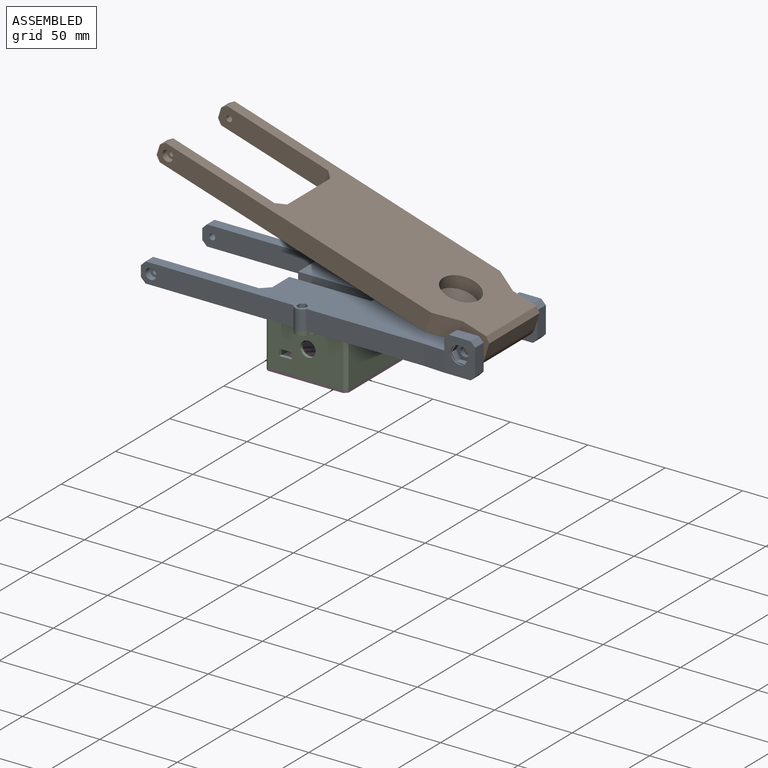
[diagram: assembled view]
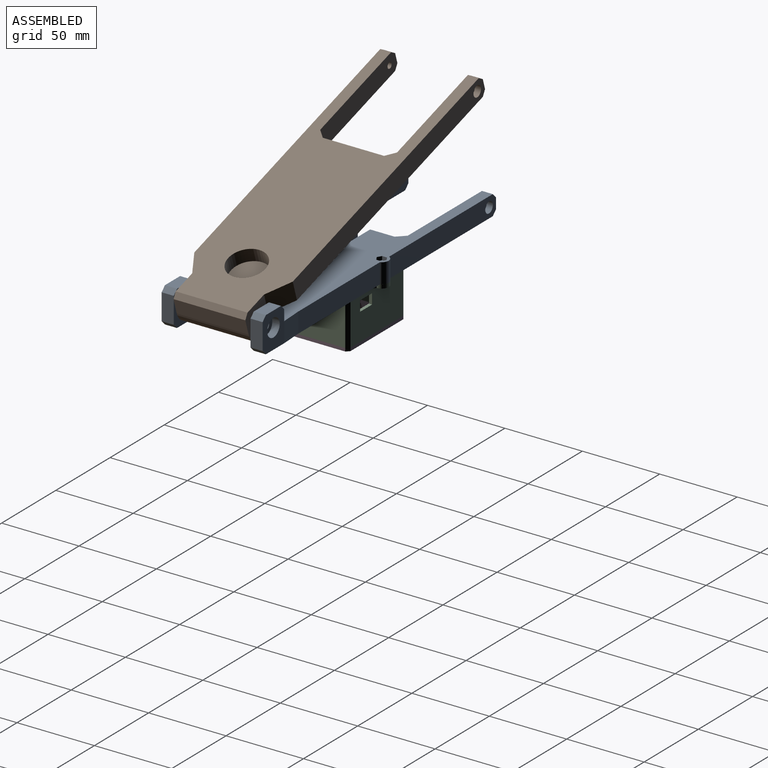
[diagram: assembled view, second angle]
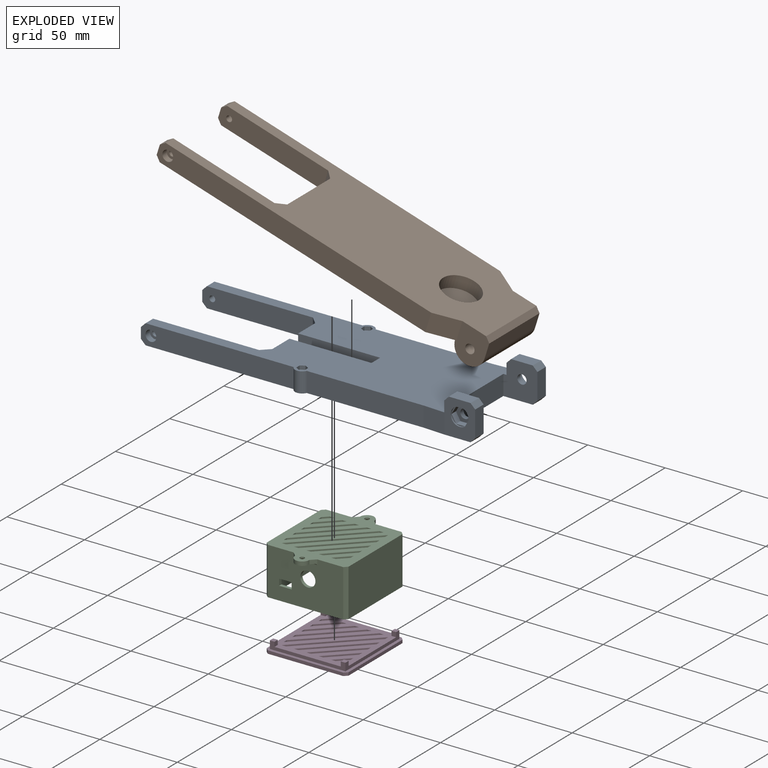
[diagram: exploded view]
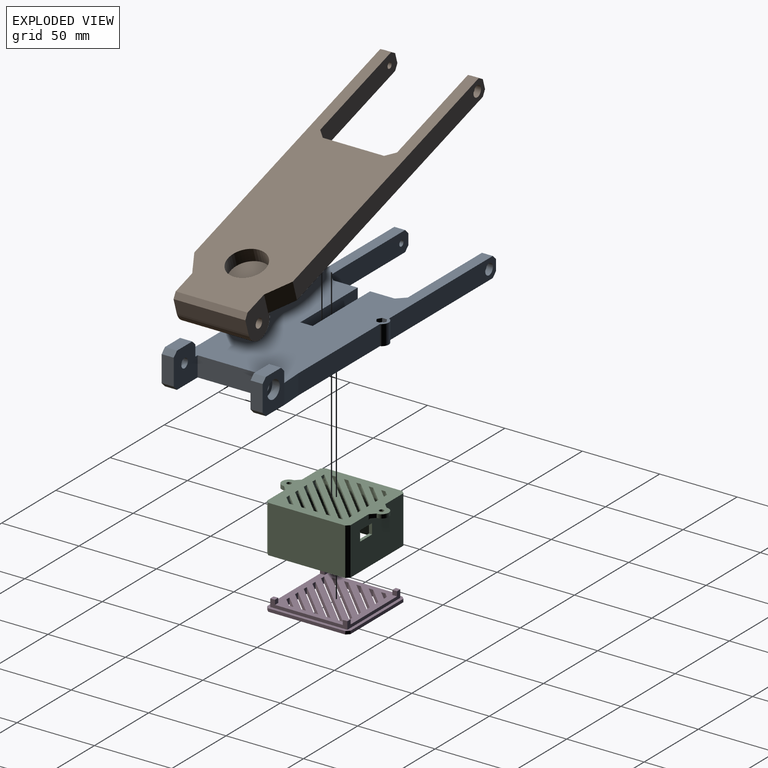
[diagram: exploded view, second angle]
ASSEMBLY  parts=4 mates=3
PART A: 84 faces, bbox 216.5x69x22.9 mm
  f0: plane 193.45x69mm, normal (0,0,1), area 8153.3mm2, adj f3,f4,f9,f16,f19,f20,f21,f22
  f1: cylinder r=1.5mm len=10.5mm, axis (0,0,-1), area 99mm2, adj f8,f83
  f2: cylinder r=1.5mm len=10.5mm, axis (0,0,-1), area 99mm2, adj f8,f76
  f3: plane 98.66x12.9mm, normal (0,1,0), area 1225.2mm2, adj f0,f8,f37,f56,f58,f59,f69
  f4: plane 75.55x12.9mm, normal (0,-1,0), area 974.7mm2, adj f0,f8,f41,f68
  f5: cylinder r=1.9mm len=3.8mm, axis (0,-1,0), area 35.8mm2, adj f19,f44
  f6: cylinder r=1.9mm len=3.8mm, axis (0,1,0), area 35.8mm2, adj f22,f43
  f7: plane 22.9x20mm, normal (0,1,0), area 339.8mm2, adj f8,f38,f42,f52,f53,f54,f61,f63
  f8: plane 210.45x69mm, normal (0,0,-1), area 8428.4mm2, adj f1,f2,f3,f4,f7,f9,f16,f19
  f9: plane 98.66x12.9mm, normal (0,-1,0), area 1225.2mm2, adj f0,f8,f36,f55,f57,f60,f68
  f10: plane 5x2.89mm, normal (0,-1,0), area 3mm2, adj f28,f39
  f11: plane 5x2.89mm, normal (0,-1,0), area 3mm2, adj f33,f39
  f12: plane 5.77x0.77mm, normal (0,-1,0), area 3mm2, adj f32,f39
  f13: plane 5x2.89mm, normal (0,-1,0), area 3mm2, adj f31,f39
  f14: plane 5x2.89mm, normal (0,-1,0), area 3mm2, adj f30,f39
  f15: plane 5.77x0.77mm, normal (0,-1,0), area 3mm2, adj f29,f39
  f16: plane 75.55x12.9mm, normal (0,1,0), area 974.7mm2, adj f0,f8,f42,f69
  f17: cylinder r=3mm len=6mm, axis (0,-1,0), area 56.5mm2, adj f23,f35
  f18: cylinder r=3mm len=6mm, axis (0,1,0), area 56.5mm2, adj f20,f34
  f19: plane 71.45x12.9mm, normal (0,1,0), area 901.4mm2, adj f0,f5,f8,f24,f55,f57,f60
  f20: plane 22.9x22mm, normal (0,1,0), area 442mm2, adj f0,f8,f18,f49,f50,f51,f62,f65
  f21: plane 39.6x12.9mm, normal (-1,0,0), area 434.1mm2, adj f0,f8,f24,f25,f46,f47,f48
  f22: plane 71.45x12.9mm, normal (0,-1,0), area 901.4mm2, adj f0,f6,f8,f25,f56,f58,f59
  f23: plane 22.9x22mm, normal (0,-1,0), area 442mm2, adj f0,f8,f17,f52,f53,f54,f61,f63
  f24: plane 12.9x5mm, normal (-0.71,0.71,0), area 91.2mm2, adj f0,f8,f19,f21
  f25: plane 12.9x5mm, normal (-0.71,-0.71,0), area 91.2mm2, adj f0,f8,f21,f22
  f26: cylinder r=12mm len=24mm, axis (0,0,-1), area 640.9mm2, adj f8,f27
  f27: plane 24x24mm, normal (0,0,-1), area 452.4mm2, adj f26
  f28: plane 5x4mm, normal (-0.87,0,-0.5), area 23.1mm2, adj f10,f29,f33,f34
  f29: plane 5.77x4mm, normal (0,0,-1), area 23.1mm2, adj f15,f28,f30,f34
  f30: plane 5x4mm, normal (0.87,0,-0.5), area 23.1mm2, adj f14,f29,f31,f34
  f31: plane 5x4mm, normal (0.87,0,0.5), area 23.1mm2, adj f13,f30,f32,f34
  f32: plane 5.77x4mm, normal (0,0,1), area 23.1mm2, adj f12,f31,f33,f34
  f33: plane 5x4mm, normal (-0.87,0,0.5), area 23.1mm2, adj f11,f28,f32,f34
  f34: plane 11.55x10mm, normal (0,-1,0), area 58.3mm2, adj f18,f28,f29,f30,f31,f32,f33
  f35: plane 11.55x11.55mm, normal (0,1,0), area 76.4mm2, adj f17,f38
  f36: cylinder r=3.5mm len=7mm, axis (0,1,0), area 88mm2, adj f9,f44
  f37: cylinder r=3.5mm len=7mm, axis (0,-1,0), area 88mm2, adj f3,f43
  f38: cylinder r=5.77mm len=11.55mm, axis (0,-1,0), area 174.1mm2, adj f7,f35
  f39: cylinder r=5.77mm len=11.55mm, axis (0,1,0), area 29mm2, adj f10,f11,f12,f13,f14,f15,f40
  f40: plane 22.9x20mm, normal (0,-1,0), area 339.8mm2, adj f8,f39,f41,f49,f50,f51,f62,f65
  f41: plane 13.86x12.9mm, normal (-0.06,-1,0), area 179mm2, adj f0,f4,f8,f40
  f42: plane 13.86x12.9mm, normal (-0.06,1,0), area 179mm2, adj f0,f7,f8,f16
  f43: plane 7x7mm, normal (0,1,0), area 27.1mm2, adj f6,f37
  f44: plane 7x7mm, normal (0,-1,0), area 27.1mm2, adj f5,f36
  f45: plane 10.45x8mm, normal (-1,0,0), area 76.7mm2, adj f0,f46,f47,f48
  f46: plane 53x6.45mm, normal (0,1,0), area 341.8mm2, adj f0,f21,f45,f47
  f47: cylinder r=4mm len=53mm, axis (-1,0,0), area 666mm2, adj f21,f45,f46,f48
  f48: plane 53x6.45mm, normal (0,-1,0), area 341.8mm2, adj f0,f21,f45,f47
  f49: plane 16.9x7.8mm, normal (1,0,0), area 131.8mm2, adj f20,f40,f62,f66
  f50: plane 14x7.8mm, normal (0,0,1), area 109.2mm2, adj f20,f40,f65,f66
  f51: plane 7.8x7mm, normal (-1,0,0), area 54.6mm2, adj f0,f20,f40,f65
  f52: plane 16.9x7.8mm, normal (1,0,0), area 131.8mm2, adj f7,f23,f61,f64
  f53: plane 14x7.8mm, normal (0,0,1), area 109.2mm2, adj f7,f23,f63,f64
  f54: plane 7.8x7mm, normal (-1,0,0), area 54.6mm2, adj f0,f7,f23,f63
  f55: plane 7x6.9mm, normal (-1,0,0), area 48.3mm2, adj f9,f19,f57,f60
  f56: plane 7x6.9mm, normal (-1,0,0), area 48.3mm2, adj f3,f22,f58,f59
  f57: plane 7x3mm, normal (-0.71,0,0.71), area 29.7mm2, adj f0,f9,f19,f55
  f58: plane 7x3mm, normal (-0.71,0,0.71), area 29.7mm2, adj f0,f3,f22,f56
  f59: plane 7x3mm, normal (-0.71,0,-0.71), area 29.7mm2, adj f3,f8,f22,f56
  f60: plane 7x3mm, normal (-0.71,0,-0.71), area 29.7mm2, adj f8,f9,f19,f55
  f61: plane 7.8x3mm, normal (0.71,0,-0.71), area 33.1mm2, adj f7,f8,f23,f52
  f62: plane 7.8x3mm, normal (0.71,0,-0.71), area 33.1mm2, adj f8,f20,f40,f49
  f63: plane 7.8x3mm, normal (-0.71,0,0.71), area 33.1mm2, adj f7,f23,f53,f54
  f64: plane 7.8x3mm, normal (0.71,0,0.71), area 33.1mm2, adj f7,f23,f52,f53
  f65: plane 7.8x3mm, normal (-0.71,0,0.71), area 33.1mm2, adj f20,f40,f50,f51
  f66: plane 7.8x3mm, normal (0.71,0,0.71), area 33.1mm2, adj f20,f40,f49,f50
  f67: plane 49.6x12.9mm, normal (1,0,0), area 639.8mm2, adj f0,f8,f20,f23
  f68: cylinder r=4.6mm len=12.9mm, axis (0,0,-1), area 135.9mm2, adj f0,f4,f8,f9
  f69: cylinder r=4.6mm len=12.9mm, axis (0,0,-1), area 135.9mm2, adj f0,f3,f8,f16
  f70: plane 2.75x2.4mm, normal (0.5,-0.87,0), area 7.6mm2, adj f0,f71,f75,f76
  f71: plane 3.18x2.4mm, normal (1,0,0), area 7.6mm2, adj f0,f70,f72,f76
  f72: plane 2.75x2.4mm, normal (0.5,0.87,0), area 7.6mm2, adj f0,f71,f73,f76
  f73: plane 2.75x2.4mm, normal (-0.5,0.87,0), area 7.6mm2, adj f0,f72,f74,f76
  f74: plane 3.18x2.4mm, normal (-1,0,0), area 7.6mm2, adj f0,f73,f75,f76
  f75: plane 2.75x2.4mm, normal (-0.5,-0.87,0), area 7.6mm2, adj f0,f70,f74,f76
  f76: plane 6.35x5.5mm, normal (0,0,1), area 19.1mm2, adj f2,f70,f71,f72,f73,f74,f75
  f77: plane 2.75x2.4mm, normal (-0.5,-0.87,0), area 7.6mm2, adj f0,f78,f82,f83
  f78: plane 2.75x2.4mm, normal (0.5,-0.87,0), area 7.6mm2, adj f0,f77,f79,f83
  f79: plane 3.18x2.4mm, normal (1,0,0), area 7.6mm2, adj f0,f78,f80,f83
  f80: plane 2.75x2.4mm, normal (0.5,0.87,0), area 7.6mm2, adj f0,f79,f81,f83
  f81: plane 2.75x2.4mm, normal (-0.5,0.87,0), area 7.6mm2, adj f0,f80,f82,f83
  f82: plane 3.18x2.4mm, normal (-1,0,0), area 7.6mm2, adj f0,f77,f81,f83
  f83: plane 6.35x5.5mm, normal (0,0,1), area 19.1mm2, adj f1,f77,f78,f79,f80,f81,f82
PART B: 33 faces, bbox 216.5x63.6x22.9 mm
  f0: plane 46.4x9.9mm, normal (1,0,0), area 459.4mm2, adj f1,f28,f29,f30
  f1: cylinder r=10mm len=46.4mm, axis (0,-1,0), area 1457.7mm2, adj f0,f7,f29,f30
  f2: cylinder r=3mm len=46.4mm, axis (0,-1,0), area 874.6mm2, adj f29,f30
  f3: cylinder r=1.9mm len=3.8mm, axis (0,-1,0), area 35.8mm2, adj f8,f21
  f4: cylinder r=1.9mm len=3.8mm, axis (0,1,0), area 35.8mm2, adj f10,f20
  f5: plane 182.59x12.9mm, normal (0,-1,0), area 2308mm2, adj f6,f7,f13,f19,f22,f24,f27
  f6: plane 210.45x63.6mm, normal (0,0,1), area 8911.5mm2, adj f5,f8,f9,f10,f11,f12,f13,f14
  f7: plane 194.45x63.6mm, normal (0,0,-1), area 8575.1mm2, adj f1,f5,f8,f9,f10,f11,f12,f13
  f8: plane 71.45x12.9mm, normal (0,1,0), area 901.4mm2, adj f3,f6,f7,f14,f22,f24,f27
  f9: plane 39.6x12.9mm, normal (-1,0,0), area 510.8mm2, adj f6,f7,f14,f15
  f10: plane 71.45x12.9mm, normal (0,-1,0), area 901.4mm2, adj f4,f6,f7,f15,f23,f25,f26
  f11: plane 182.59x12.9mm, normal (0,1,0), area 2308mm2, adj f6,f7,f12,f18,f23,f25,f26
  f12: plane 14.8x12.9mm, normal (0.5,0.87,0), area 220.5mm2, adj f6,f7,f11,f31
  f13: plane 14.8x12.9mm, normal (0.5,-0.87,0), area 220.5mm2, adj f5,f6,f7,f32
  f14: plane 12.9x5mm, normal (-0.71,0.71,0), area 91.2mm2, adj f6,f7,f8,f9
  f15: plane 12.9x5mm, normal (-0.71,-0.71,0), area 91.2mm2, adj f6,f7,f9,f10
  f16: cylinder r=12mm len=24mm, axis (0,0,1), area 640.9mm2, adj f6,f17
  f17: plane 24x24mm, normal (0,0,1), area 452.4mm2, adj f16
  f18: cylinder r=3.5mm len=7mm, axis (0,-1,0), area 88mm2, adj f11,f20
  f19: cylinder r=3.5mm len=7mm, axis (0,1,0), area 88mm2, adj f5,f21
  f20: plane 7x7mm, normal (0,1,0), area 27.1mm2, adj f4,f18
  f21: plane 7x7mm, normal (0,-1,0), area 27.1mm2, adj f3,f19
  f22: plane 7x6.9mm, normal (-1,0,0), area 48.3mm2, adj f5,f8,f24,f27
  f23: plane 7x6.9mm, normal (-1,0,0), area 48.3mm2, adj f10,f11,f25,f26
  f24: plane 7x3mm, normal (-0.71,0,-0.71), area 29.7mm2, adj f5,f7,f8,f22
  f25: plane 7x3mm, normal (-0.71,0,-0.71), area 29.7mm2, adj f7,f10,f11,f23
  f26: plane 7x3mm, normal (-0.71,0,0.71), area 29.7mm2, adj f6,f10,f11,f23
  f27: plane 7x3mm, normal (-0.71,0,0.71), area 29.7mm2, adj f5,f6,f8,f22
  f28: plane 46.4x3mm, normal (0.71,0,0.71), area 196.9mm2, adj f0,f6,f29,f30
  f29: plane 22.9x20mm, normal (0,-1,0), area 369.4mm2, adj f0,f1,f2,f6,f7,f28,f32
  f30: plane 22.9x20mm, normal (0,1,0), area 369.4mm2, adj f0,f1,f2,f6,f7,f28,f31
  f31: plane 12.9x0.05mm, normal (0.71,0.71,0), area 1mm2, adj f6,f7,f12,f30
  f32: plane 12.9x0.05mm, normal (0.71,-0.71,0), area 1mm2, adj f6,f7,f13,f29
PART C: 96 faces, bbox 53x69.2x30.8 mm
  f0: plane 69x52.8mm, normal (0,0,-1), area 2341.6mm2, adj f2,f3,f6,f7,f32,f34,f38,f39
  f1: plane 49.8x48.8mm, normal (0,0,1), area 1777.6mm2, adj f4,f5,f8,f9,f11,f13,f14,f16
  f2: plane 48.99x30.79mm, normal (0,1,0), area 1369.1mm2, adj f0,f10,f23,f24,f25,f26,f42,f43
  f3: plane 48.99x30.79mm, normal (0,-1,0), area 1332.9mm2, adj f0,f10,f27,f28,f29,f30,f31,f40
  f4: plane 48.8x28.6mm, normal (0,1,0), area 1268.8mm2, adj f1,f8,f9,f10,f14,f15,f18,f19
  f5: plane 48.8x28.6mm, normal (0,-1,0), area 1305.1mm2, adj f1,f8,f9,f10,f12,f13,f20,f21
  f6: plane 49.8x30.6mm, normal (-1,0,0), area 1523.9mm2, adj f0,f10,f41,f42
  f7: plane 49.8x30.6mm, normal (1,0,0), area 1523.9mm2, adj f0,f10,f40,f43
  f8: plane 49.8x28.6mm, normal (1,0,0), area 1406.3mm2, adj f1,f4,f5,f10,f17,f18,f21,f22
  f9: plane 49.8x28.6mm, normal (-1,0,0), area 1406.3mm2, adj f1,f4,f5,f10,f11,f12,f15,f16
  f10: plane 53.8x52.8mm, normal (0,0,1), area 402.4mm2, adj f2,f3,f4,f5,f6,f7,f8,f9
  f11: plane 3x3mm, normal (0,-1,0), area 9mm2, adj f1,f9,f12,f13
  f12: plane 3x3mm, normal (0,0,1), area 9mm2, adj f5,f9,f11,f13
  f13: plane 3x3mm, normal (-1,0,0), area 9mm2, adj f1,f5,f11,f12
  f14: plane 3x3mm, normal (-1,0,0), area 9mm2, adj f1,f4,f15,f16
  f15: plane 3x3mm, normal (0,0,1), area 9mm2, adj f4,f9,f14,f16
  f16: plane 3x3mm, normal (0,1,0), area 9mm2, adj f1,f9,f14,f15
  f17: plane 3x3mm, normal (0,1,0), area 9mm2, adj f1,f8,f18,f19
  f18: plane 3x3mm, normal (0,0,1), area 9mm2, adj f4,f8,f17,f19
  f19: plane 3x3mm, normal (1,0,0), area 9mm2, adj f1,f4,f17,f18
  f20: plane 3x3mm, normal (1,0,0), area 9mm2, adj f1,f5,f21,f22
  f21: plane 3x3mm, normal (0,0,1), area 9mm2, adj f5,f8,f20,f22
  f22: plane 3x3mm, normal (0,-1,0), area 9mm2, adj f1,f8,f20,f21
  f23: plane 6.6x2mm, normal (1,0,0), area 13.2mm2, adj f2,f5,f24,f26
  f24: plane 11x2mm, normal (0,0,-1), area 22mm2, adj f2,f5,f23,f25
  f25: plane 6.6x2mm, normal (-1,0,0), area 13.2mm2, adj f2,f5,f24,f26
  f26: plane 11x2mm, normal (0,0,1), area 22mm2, adj f2,f5,f23,f25
  f27: plane 8.05x2mm, normal (0,0,-1), area 16.1mm2, adj f3,f4,f28,f29
  f28: plane 4.15x2mm, normal (-1,0,0), area 8.3mm2, adj f3,f4,f27,f30
  f29: plane 4.15x2mm, normal (1,0,0), area 8.3mm2, adj f3,f4,f27,f30
  f30: plane 8.05x2mm, normal (0,0,1), area 16.1mm2, adj f3,f4,f28,f29
  f31: cylinder r=4.9mm len=9.8mm, axis (0,-1,0), area 61.6mm2, adj f3,f4
  f32: cylinder r=1.5mm len=3mm, axis (0,0,-1), area 9.4mm2, adj f0,f36
  f33: plane 13.2x6.6mm, normal (0,0,1), area 30.5mm2, adj f36,f39,f84,f85,f90,f95
  f34: cylinder r=1.5mm len=3mm, axis (0,0,-1), area 9.4mm2, adj f0,f37
  f35: plane 13.2x6.6mm, normal (0,0,1), area 30.5mm2, adj f37,f38,f86,f87,f88,f93
  f36: cone r=3mm half-angle=45deg, axis (0,0,1), area 30mm2, adj f32,f33,f91,f94
  f37: cone r=1.5mm half-angle=45deg, axis (0,0,1), area 30mm2, adj f34,f35,f89,f92
  f38: cylinder r=4.6mm len=9.2mm, axis (0,0,1), area 36.1mm2, adj f0,f35,f86,f87
  f39: cylinder r=4.6mm len=9.2mm, axis (0,0,1), area 36.1mm2, adj f0,f33,f84,f85
  f40: plane 30.6x2mm, normal (0.71,-0.71,0), area 86.5mm2, adj f0,f3,f7,f10
  f41: plane 30.6x2mm, normal (-0.71,-0.71,0), area 86.5mm2, adj f0,f3,f6,f10
  f42: plane 30.6x2mm, normal (-0.71,0.71,0), area 86.5mm2, adj f0,f2,f6,f10
  f43: plane 30.6x2mm, normal (0.71,0.71,0), area 86.5mm2, adj f0,f2,f7,f10
  f44: plane 2.83x2mm, normal (1,0,0), area 5.7mm2, adj f0,f1,f45,f47
  f45: plane 5.66x5.66mm, normal (0.71,0.71,0), area 16mm2, adj f0,f1,f44,f46
  f46: plane 2.83x2mm, normal (0,1,0), area 5.7mm2, adj f0,f1,f45,f47
  f47: plane 8.49x8.49mm, normal (-0.71,-0.71,0), area 24mm2, adj f0,f1,f44,f46
  f48: plane 2.83x2mm, normal (0,-1,0), area 5.7mm2, adj f0,f1,f49,f51
  f49: plane 5.94x5.94mm, normal (0.71,0.71,0), area 16.8mm2, adj f0,f1,f48,f50
  f50: plane 2.83x2mm, normal (-1,0,0), area 5.7mm2, adj f0,f1,f49,f51
  f51: plane 3.11x3.11mm, normal (-0.71,-0.71,0), area 8.8mm2, adj f0,f1,f48,f50
  f52: plane 2.83x2mm, normal (1,0,0), area 5.7mm2, adj f0,f1,f53,f55
  f53: plane 29.66x29.66mm, normal (0.71,0.71,0), area 83.9mm2, adj f0,f1,f52,f54
  f54: plane 2.83x2mm, normal (0,1,0), area 5.7mm2, adj f0,f1,f53,f55
  f55: plane 32.49x32.49mm, normal (-0.71,-0.71,0), area 91.9mm2, adj f0,f1,f52,f54
  f56: plane 2.83x2mm, normal (1,0,0), area 5.7mm2, adj f0,f1,f57,f59
  f57: plane 37.66x37.66mm, normal (0.71,0.71,0), area 106.5mm2, adj f0,f1,f56,f58
  f58: plane 2.83x2mm, normal (0,1,0), area 5.7mm2, adj f0,f1,f57,f59
  f59: plane 40.49x40.49mm, normal (-0.71,-0.71,0), area 114.5mm2, adj f0,f1,f56,f58
  f60: plane 2.83x2mm, normal (1,0,0), area 5.7mm2, adj f0,f1,f61,f63
  f61: plane 13.66x13.66mm, normal (0.71,0.71,0), area 38.6mm2, adj f0,f1,f60,f62
  f62: plane 2.83x2mm, normal (0,1,0), area 5.7mm2, adj f0,f1,f61,f63
  f63: plane 16.49x16.49mm, normal (-0.71,-0.71,0), area 46.6mm2, adj f0,f1,f60,f62
  f64: plane 2.83x2mm, normal (1,0,0), area 5.7mm2, adj f0,f1,f65,f67
  f65: plane 21.66x21.66mm, normal (0.71,0.71,0), area 61.3mm2, adj f0,f1,f64,f66
  f66: plane 2.83x2mm, normal (0,1,0), area 5.7mm2, adj f0,f1,f65,f67
  f67: plane 24.49x24.49mm, normal (-0.71,-0.71,0), area 69.3mm2, adj f0,f1,f64,f66
  f68: plane 2.83x2mm, normal (0,-1,0), area 5.7mm2, adj f0,f1,f69,f71
  f69: plane 21.94x21.94mm, normal (0.71,0.71,0), area 62.1mm2, adj f0,f1,f68,f70
  f70: plane 2.83x2mm, normal (-1,0,0), area 5.7mm2, adj f0,f1,f69,f71
  f71: plane 19.11x19.11mm, normal (-0.71,-0.71,0), area 54.1mm2, adj f0,f1,f68,f70
  f72: plane 2.83x2mm, normal (0,-1,0), area 5.7mm2, adj f0,f1,f73,f75
  f73: plane 13.94x13.94mm, normal (0.71,0.71,0), area 39.4mm2, adj f0,f1,f72,f74
  f74: plane 2.83x2mm, normal (-1,0,0), area 5.7mm2, adj f0,f1,f73,f75
  f75: plane 11.11x11.11mm, normal (-0.71,-0.71,0), area 31.4mm2, adj f0,f1,f72,f74
  f76: plane 2.83x2mm, normal (0,-1,0), area 5.7mm2, adj f0,f1,f77,f79
  f77: plane 37.94x37.94mm, normal (0.71,0.71,0), area 107.3mm2, adj f0,f1,f76,f78
  f78: plane 2.83x2mm, normal (-1,0,0), area 5.7mm2, adj f0,f1,f77,f79
  f79: plane 35.11x35.11mm, normal (-0.71,-0.71,0), area 99.3mm2, adj f0,f1,f76,f78
  f80: plane 2.83x2mm, normal (0,-1,0), area 5.7mm2, adj f0,f1,f81,f83
  f81: plane 29.94x29.94mm, normal (0.71,0.71,0), area 84.7mm2, adj f0,f1,f80,f82
  f82: plane 2.83x2mm, normal (-1,0,0), area 5.7mm2, adj f0,f1,f81,f83
  f83: plane 27.11x27.11mm, normal (-0.71,-0.71,0), area 76.7mm2, adj f0,f1,f80,f82
  f84: plane 3.5x3mm, normal (0.71,-0.71,0), area 10.9mm2, adj f0,f3,f33,f39,f90
  f85: plane 3.5x3mm, normal (-0.71,-0.71,0), area 10.9mm2, adj f0,f3,f33,f39,f95
  f86: plane 3.5x3mm, normal (-0.71,0.71,0), area 10.9mm2, adj f0,f2,f35,f38,f93
  f87: plane 3.5x3mm, normal (0.71,0.71,0), area 10.9mm2, adj f0,f2,f35,f38,f88
  f88: cylinder r=1mm len=5.36mm, axis (-1,0,0), area 7.9mm2, adj f2,f35,f87,f89
  f89: bspline ~2.56x1.17mm, area 1.5mm2, adj f2,f37,f88
  f90: cylinder r=1mm len=5.36mm, axis (1,0,0), area 7.9mm2, adj f3,f33,f84,f91
  f91: bspline ~2.56x1.17mm, area 1.5mm2, adj f3,f36,f90
  f92: bspline ~2.56x1.17mm, area 1.5mm2, adj f2,f37,f93
  f93: cylinder r=1mm len=5.36mm, axis (-1,0,0), area 7.9mm2, adj f2,f35,f86,f92
  f94: bspline ~2.56x1.17mm, area 1.5mm2, adj f3,f36,f95
  f95: cylinder r=1mm len=5.36mm, axis (1,0,0), area 7.9mm2, adj f3,f33,f85,f94
PART D: 67 faces, bbox 52.8x53.8x7 mm
  f0: plane 49.8x48.8mm, normal (0,0,-1), area 1777.6mm2, adj f2,f3,f4,f5,f11,f12,f14,f15
  f1: plane 53.8x52.8mm, normal (0,0,1), area 2216mm2, adj f6,f7,f8,f9,f23,f24,f25,f26
  f2: plane 48.8x5mm, normal (0,1,0), area 115.6mm2, adj f0,f3,f5,f10,f18,f19,f21,f22
  f3: plane 49.8x5mm, normal (-1,0,0), area 117.6mm2, adj f0,f2,f4,f10,f11,f13,f17,f19
  f4: plane 48.8x5mm, normal (0,-1,0), area 115.6mm2, adj f0,f3,f5,f10,f12,f13,f15,f16
  f5: plane 49.8x5mm, normal (1,0,0), area 117.6mm2, adj f0,f2,f4,f10,f14,f16,f20,f22
  f6: plane 48.8x2mm, normal (0,1,0), area 97.6mm2, adj f1,f10,f25,f26
  f7: plane 49.8x2mm, normal (-1,0,0), area 99.6mm2, adj f1,f10,f24,f25
  f8: plane 48.8x2mm, normal (0,-1,0), area 97.6mm2, adj f1,f10,f23,f24
  f9: plane 49.8x2mm, normal (1,0,0), area 99.6mm2, adj f1,f10,f23,f26
  f10: plane 53.8x52.8mm, normal (0,0,-1), area 402.4mm2, adj f2,f3,f4,f5,f6,f7,f8,f9
  f11: plane 3x3mm, normal (0,1,0), area 9mm2, adj f0,f3,f12,f13
  f12: plane 3x3mm, normal (1,0,0), area 9mm2, adj f0,f4,f11,f13
  f13: plane 3x3mm, normal (0,0,-1), area 9mm2, adj f3,f4,f11,f12
  f14: plane 3x3mm, normal (0,1,0), area 9mm2, adj f0,f5,f15,f16
  f15: plane 3x3mm, normal (-1,0,0), area 9mm2, adj f0,f4,f14,f16
  f16: plane 3x3mm, normal (0,0,-1), area 9mm2, adj f4,f5,f14,f15
  f17: plane 3x3mm, normal (0,-1,0), area 9mm2, adj f0,f3,f18,f19
  f18: plane 3x3mm, normal (1,0,0), area 9mm2, adj f0,f2,f17,f19
  f19: plane 3x3mm, normal (0,0,-1), area 9mm2, adj f2,f3,f17,f18
  f20: plane 3x3mm, normal (0,-1,0), area 9mm2, adj f0,f5,f21,f22
  f21: plane 3x3mm, normal (-1,0,0), area 9mm2, adj f0,f2,f20,f22
  f22: plane 3x3mm, normal (0,0,-1), area 9mm2, adj f2,f5,f20,f21
  f23: plane 2x2mm, normal (0.71,-0.71,0), area 5.7mm2, adj f1,f8,f9,f10
  f24: plane 2x2mm, normal (-0.71,-0.71,0), area 5.7mm2, adj f1,f7,f8,f10
  f25: plane 2x2mm, normal (-0.71,0.71,0), area 5.7mm2, adj f1,f6,f7,f10
  f26: plane 2x2mm, normal (0.71,0.71,0), area 5.7mm2, adj f1,f6,f9,f10
  f27: plane 4x2.83mm, normal (1,0,0), area 11.3mm2, adj f0,f1,f28,f30
  f28: plane 5.66x5.66mm, normal (0.71,0.71,0), area 32mm2, adj f0,f1,f27,f29
  f29: plane 4x2.83mm, normal (0,1,0), area 11.3mm2, adj f0,f1,f28,f30
  f30: plane 8.49x8.49mm, normal (-0.71,-0.71,0), area 48mm2, adj f0,f1,f27,f29
  f31: plane 4x2.83mm, normal (0,-1,0), area 11.3mm2, adj f0,f1,f32,f34
  f32: plane 5.94x5.94mm, normal (0.71,0.71,0), area 33.6mm2, adj f0,f1,f31,f33
  f33: plane 4x2.83mm, normal (-1,0,0), area 11.3mm2, adj f0,f1,f32,f34
  f34: plane 4x3.11mm, normal (-0.71,-0.71,0), area 17.6mm2, adj f0,f1,f31,f33
  f35: plane 4x2.83mm, normal (1,0,0), area 11.3mm2, adj f0,f1,f36,f38
  f36: plane 29.66x29.66mm, normal (0.71,0.71,0), area 167.8mm2, adj f0,f1,f35,f37
  f37: plane 4x2.83mm, normal (0,1,0), area 11.3mm2, adj f0,f1,f36,f38
  f38: plane 32.49x32.49mm, normal (-0.71,-0.71,0), area 183.8mm2, adj f0,f1,f35,f37
  f39: plane 4x2.83mm, normal (1,0,0), area 11.3mm2, adj f0,f1,f40,f42
  f40: plane 37.66x37.66mm, normal (0.71,0.71,0), area 213mm2, adj f0,f1,f39,f41
  f41: plane 4x2.83mm, normal (0,1,0), area 11.3mm2, adj f0,f1,f40,f42
  f42: plane 40.49x40.49mm, normal (-0.71,-0.71,0), area 229mm2, adj f0,f1,f39,f41
  f43: plane 4x2.83mm, normal (1,0,0), area 11.3mm2, adj f0,f1,f44,f46
  f44: plane 13.66x13.66mm, normal (0.71,0.71,0), area 77.3mm2, adj f0,f1,f43,f45
  f45: plane 4x2.83mm, normal (0,1,0), area 11.3mm2, adj f0,f1,f44,f46
  f46: plane 16.49x16.49mm, normal (-0.71,-0.71,0), area 93.3mm2, adj f0,f1,f43,f45
  f47: plane 4x2.83mm, normal (1,0,0), area 11.3mm2, adj f0,f1,f48,f50
  f48: plane 21.66x21.66mm, normal (0.71,0.71,0), area 122.5mm2, adj f0,f1,f47,f49
  f49: plane 4x2.83mm, normal (0,1,0), area 11.3mm2, adj f0,f1,f48,f50
  f50: plane 24.49x24.49mm, normal (-0.71,-0.71,0), area 138.5mm2, adj f0,f1,f47,f49
  f51: plane 4x2.83mm, normal (0,-1,0), area 11.3mm2, adj f0,f1,f52,f54
  f52: plane 21.94x21.94mm, normal (0.71,0.71,0), area 124.1mm2, adj f0,f1,f51,f53
  f53: plane 4x2.83mm, normal (-1,0,0), area 11.3mm2, adj f0,f1,f52,f54
  f54: plane 19.11x19.11mm, normal (-0.71,-0.71,0), area 108.1mm2, adj f0,f1,f51,f53
  f55: plane 4x2.83mm, normal (0,-1,0), area 11.3mm2, adj f0,f1,f56,f58
  f56: plane 13.94x13.94mm, normal (0.71,0.71,0), area 78.9mm2, adj f0,f1,f55,f57
  f57: plane 4x2.83mm, normal (-1,0,0), area 11.3mm2, adj f0,f1,f56,f58
  f58: plane 11.11x11.11mm, normal (-0.71,-0.71,0), area 62.9mm2, adj f0,f1,f55,f57
  f59: plane 4x2.83mm, normal (0,-1,0), area 11.3mm2, adj f0,f1,f60,f62
  f60: plane 37.94x37.94mm, normal (0.71,0.71,0), area 214.6mm2, adj f0,f1,f59,f61
  f61: plane 4x2.83mm, normal (-1,0,0), area 11.3mm2, adj f0,f1,f60,f62
  f62: plane 35.11x35.11mm, normal (-0.71,-0.71,0), area 198.6mm2, adj f0,f1,f59,f61
  f63: plane 4x2.83mm, normal (0,-1,0), area 11.3mm2, adj f0,f1,f64,f66
  f64: plane 29.94x29.94mm, normal (0.71,0.71,0), area 169.4mm2, adj f0,f1,f63,f65
  f65: plane 4x2.83mm, normal (-1,0,0), area 11.3mm2, adj f0,f1,f64,f66
  f66: plane 27.11x27.11mm, normal (-0.71,-0.71,0), area 153.4mm2, adj f0,f1,f63,f65
PLACE A t=(-55.98,8.85,-37.39)mm fixed
PLACE B rot(axis=(0,1,0),17.2deg) t=(-50.68,8.85,22.48)mm
PLACE C rot(axis=(0,1,0),180deg) t=(40.42,8.85,-42.84)mm
PLACE D rot(axis=(0,-1,0),180deg) t=(40.42,8.85,-42.84)mm
MATE revolute B.f1 <-> A.f17  axis (0,-1,0) through (144.02,-15.95,-24.94)mm
MATE fastened C.f10 <-> D.f10  axis (0,0,-1) through (15.02,34.75,-68.44)mm
MATE fastened A.f8 <-> C.f0  axis (0,0,-1) through (14.02,8.85,-37.84)mm
